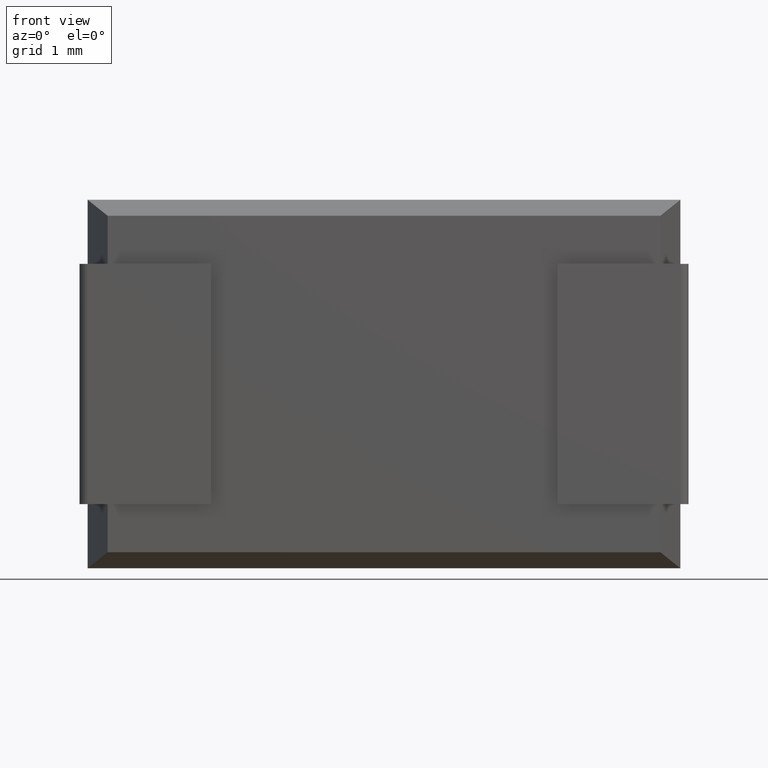
[diagram: clean part render]
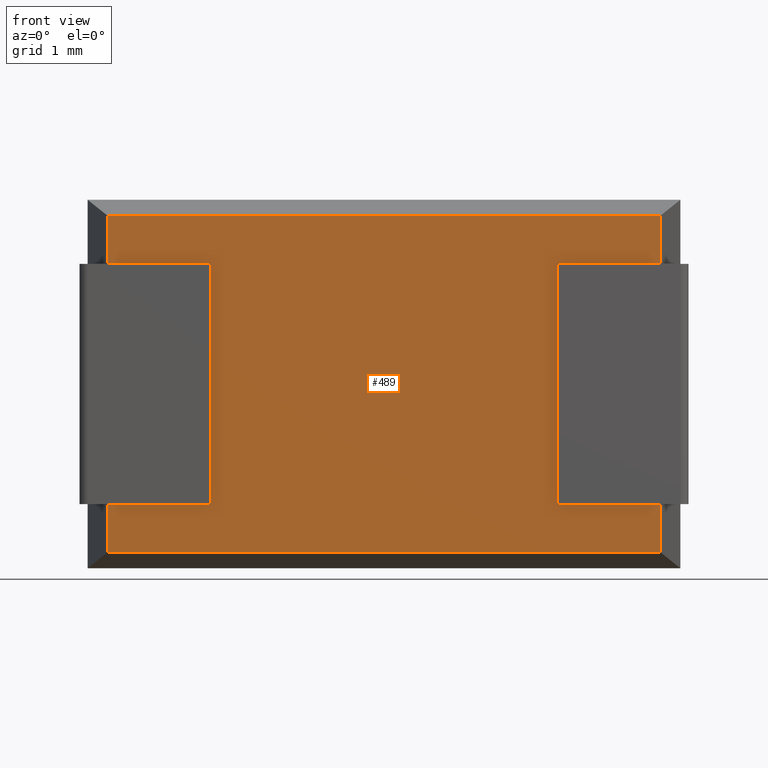
[diagram: same view with one face highlighted and labeled with its STEP entity id]
A machine part, front view. The second image highlights one B-rep face of the part: STEP entity #489.
In plain terms, the highlighted planar face has unit normal (0, -1, 0).
Its self-contained STEP definition (entity closure, byte-faithful):
#36 = CARTESIAN_POINT ( 'NONE',  ( 7.149999999999999467, 0.000000000000000000, -4.599999999999999645 ) ) ;
#69 = CARTESIAN_POINT ( 'NONE',  ( 1.537779882194698855, -3.192222914327899506E-17, -3.799999999999999822 ) ) ;
#90 = CARTESIAN_POINT ( 'NONE',  ( 5.862220117805300390, 0.000000000000000000, -3.799999999999999822 ) ) ;
#147 = EDGE_CURVE ( 'NONE', #2411, #1406, #1831, .T. ) ;
#248 = DIRECTION ( 'NONE',  ( -0.000000000000000000, -0.000000000000000000, 1.000000000000000000 ) ) ;
#272 = CARTESIAN_POINT ( 'NONE',  ( 5.862220117805300390, -3.192222914327899506E-17, -3.799999999999999822 ) ) ;
#309 = LINE ( 'NONE', #2138, #2780 ) ;
#317 = FACE_OUTER_BOUND ( 'NONE', #2244, .T. ) ;
#329 = EDGE_CURVE ( 'NONE', #2333, #1674, #2363, .T. ) ;
#331 = LINE ( 'NONE', #518, #2434 ) ;
#389 = LINE ( 'NONE', #2942, #661 ) ;
#393 = EDGE_CURVE ( 'NONE', #1406, #1966, #1181, .T. ) ;
#411 = VECTOR ( 'NONE', #943, 1000.000000000000000 ) ;
#441 = ORIENTED_EDGE ( 'NONE', *, *, #1202, .T. ) ;
#458 = EDGE_CURVE ( 'NONE', #2905, #834, #331, .T. ) ;
#489 = ADVANCED_FACE ( 'NONE', ( #317 ), #567, .T. ) ;
#518 = CARTESIAN_POINT ( 'NONE',  ( 7.399999999999999467, -1.084202172485504434E-16, -4.400000000000000355 ) ) ;
#567 = PLANE ( 'NONE',  #1761 ) ;
#661 = VECTOR ( 'NONE', #1088, 1000.000000000000000 ) ;
#678 = DIRECTION ( 'NONE',  ( -1.000000000000000000, 0.000000000000000000, 0.000000000000000000 ) ) ;
#679 = CARTESIAN_POINT ( 'NONE',  ( 5.862220117805300390, -3.192222914327899506E-17, -3.799999999999999822 ) ) ;
#745 = VECTOR ( 'NONE', #2366, 1000.000000000000000 ) ;
#823 = EDGE_CURVE ( 'NONE', #834, #2105, #2672, .T. ) ;
#829 = CARTESIAN_POINT ( 'NONE',  ( 0.2500000000000001665, -3.388131789017201356E-18, -0.7999999999999999334 ) ) ;
#834 = VERTEX_POINT ( 'NONE', #2889 ) ;
#897 = VECTOR ( 'NONE', #678, 1000.000000000000000 ) ;
#943 = DIRECTION ( 'NONE',  ( 0.000000000000000000, 0.000000000000000000, 1.000000000000000000 ) ) ;
#972 = DIRECTION ( 'NONE',  ( 0.000000000000000000, 0.000000000000000000, 1.000000000000000000 ) ) ;
#976 = CARTESIAN_POINT ( 'NONE',  ( 7.149999999999999467, 0.000000000000000000, -3.799999999999999822 ) ) ;
#1055 = DIRECTION ( 'NONE',  ( 1.000000000000000000, -1.017195236304267233E-16, 0.000000000000000000 ) ) ;
#1059 = EDGE_CURVE ( 'NONE', #1674, #1482, #309, .T. ) ;
#1088 = DIRECTION ( 'NONE',  ( -1.000000000000000000, -1.017195236304267233E-16, 0.000000000000000000 ) ) ;
#1135 = CARTESIAN_POINT ( 'NONE',  ( 7.149999999999999467, -3.673940397442037312E-17, -0.1999999999999996503 ) ) ;
#1145 = ORIENTED_EDGE ( 'NONE', *, *, #1731, .T. ) ;
#1181 = LINE ( 'NONE', #2334, #1701 ) ;
#1190 = ORIENTED_EDGE ( 'NONE', *, *, #393, .F. ) ;
#1202 = EDGE_CURVE ( 'NONE', #2905, #1284, #1838, .T. ) ;
#1204 = CARTESIAN_POINT ( 'NONE',  ( 1.537779882194698855, -3.192222914327899506E-17, -3.799999999999999822 ) ) ;
#1222 = LINE ( 'NONE', #36, #745 ) ;
#1264 = DIRECTION ( 'NONE',  ( 0.000000000000000000, -1.000000000000000000, 0.000000000000000000 ) ) ;
#1284 = VERTEX_POINT ( 'NONE', #976 ) ;
#1288 = EDGE_CURVE ( 'NONE', #1482, #1492, #1222, .T. ) ;
#1302 = CARTESIAN_POINT ( 'NONE',  ( 5.862220117805300390, -0.000000000000000000, -0.7999999999999999334 ) ) ;
#1406 = VERTEX_POINT ( 'NONE', #829 ) ;
#1439 = ORIENTED_EDGE ( 'NONE', *, *, #458, .F. ) ;
#1473 = DIRECTION ( 'NONE',  ( -1.000000000000000000, 0.000000000000000000, 0.000000000000000000 ) ) ;
#1482 = VERTEX_POINT ( 'NONE', #2469 ) ;
#1488 = CARTESIAN_POINT ( 'NONE',  ( 0.000000000000000000, 0.000000000000000000, 0.000000000000000000 ) ) ;
#1492 = VERTEX_POINT ( 'NONE', #1135 ) ;
#1530 = VECTOR ( 'NONE', #1055, 1000.000000000000000 ) ;
#1570 = ORIENTED_EDGE ( 'NONE', *, *, #1288, .T. ) ;
#1596 = LINE ( 'NONE', #2067, #897 ) ;
#1616 = VECTOR ( 'NONE', #972, 1000.000000000000000 ) ;
#1641 = CARTESIAN_POINT ( 'NONE',  ( 7.150000000000000355, 5.421010862427522170E-17, -4.400000000000000355 ) ) ;
#1674 = VERTEX_POINT ( 'NONE', #1302 ) ;
#1701 = VECTOR ( 'NONE', #248, 1000.000000000000000 ) ;
#1710 = CARTESIAN_POINT ( 'NONE',  ( 1.537779882194698855, -3.192222914327899506E-17, -0.7999999999999999334 ) ) ;
#1731 = EDGE_CURVE ( 'NONE', #2017, #2105, #389, .T. ) ;
#1761 = AXIS2_PLACEMENT_3D ( 'NONE', #1488, #1264, #1930 ) ;
#1787 = CARTESIAN_POINT ( 'NONE',  ( 0.2500000000000001110, -1.390555330637778128E-16, -3.799999999999999822 ) ) ;
#1831 = LINE ( 'NONE', #2094, #2773 ) ;
#1838 = LINE ( 'NONE', #1852, #2006 ) ;
#1852 = CARTESIAN_POINT ( 'NONE',  ( 7.149999999999999467, 0.000000000000000000, -4.599999999999999645 ) ) ;
#1884 = EDGE_CURVE ( 'NONE', #1492, #1966, #1596, .T. ) ;
#1930 = DIRECTION ( 'NONE',  ( 0.000000000000000000, -0.000000000000000000, -1.000000000000000000 ) ) ;
#1966 = VERTEX_POINT ( 'NONE', #2176 ) ;
#1977 = DIRECTION ( 'NONE',  ( -0.000000000000000000, -0.000000000000000000, 1.000000000000000000 ) ) ;
#1984 = LINE ( 'NONE', #679, #1530 ) ;
#1987 = ORIENTED_EDGE ( 'NONE', *, *, #1884, .T. ) ;
#1989 = CARTESIAN_POINT ( 'NONE',  ( 0.2500000000000001665, -3.388131789017201356E-18, -4.599999999999999645 ) ) ;
#2006 = VECTOR ( 'NONE', #2568, 1000.000000000000000 ) ;
#2017 = VERTEX_POINT ( 'NONE', #69 ) ;
#2026 = ORIENTED_EDGE ( 'NONE', *, *, #2756, .F. ) ;
#2067 = CARTESIAN_POINT ( 'NONE',  ( 7.399999999999999467, -3.673940397442037312E-17, -0.1999999999999996503 ) ) ;
#2094 = CARTESIAN_POINT ( 'NONE',  ( 1.537779882194698855, -3.192222914327899506E-17, -0.7999999999999999334 ) ) ;
#2104 = VECTOR ( 'NONE', #1977, 1000.000000000000000 ) ;
#2105 = VERTEX_POINT ( 'NONE', #1787 ) ;
#2138 = CARTESIAN_POINT ( 'NONE',  ( 5.862220117805300390, -3.192222914327899506E-17, -0.7999999999999999334 ) ) ;
#2154 = ORIENTED_EDGE ( 'NONE', *, *, #2236, .F. ) ;
#2176 = CARTESIAN_POINT ( 'NONE',  ( 0.2500000000000002220, -3.673940397442037312E-17, -0.1999999999999996503 ) ) ;
#2236 = EDGE_CURVE ( 'NONE', #2017, #2411, #2804, .T. ) ;
#2244 = EDGE_LOOP ( 'NONE', ( #441, #2026, #2572, #2681, #1570, #1987, #1190, #2267, #2154, #1145, #2576, #1439 ) ) ;
#2267 = ORIENTED_EDGE ( 'NONE', *, *, #147, .F. ) ;
#2333 = VERTEX_POINT ( 'NONE', #90 ) ;
#2334 = CARTESIAN_POINT ( 'NONE',  ( 0.2500000000000001665, -3.388131789017201356E-18, -4.599999999999999645 ) ) ;
#2363 = LINE ( 'NONE', #272, #1616 ) ;
#2366 = DIRECTION ( 'NONE',  ( -0.000000000000000000, -0.000000000000000000, 1.000000000000000000 ) ) ;
#2411 = VERTEX_POINT ( 'NONE', #1710 ) ;
#2434 = VECTOR ( 'NONE', #1473, 1000.000000000000000 ) ;
#2469 = CARTESIAN_POINT ( 'NONE',  ( 7.150000000000000355, -8.145729265048541440E-17, -0.7999999999999999334 ) ) ;
#2568 = DIRECTION ( 'NONE',  ( -0.000000000000000000, -0.000000000000000000, 1.000000000000000000 ) ) ;
#2572 = ORIENTED_EDGE ( 'NONE', *, *, #329, .T. ) ;
#2576 = ORIENTED_EDGE ( 'NONE', *, *, #823, .F. ) ;
#2612 = DIRECTION ( 'NONE',  ( 1.000000000000000000, -1.017195236304267233E-16, 0.000000000000000000 ) ) ;
#2672 = LINE ( 'NONE', #1989, #2104 ) ;
#2681 = ORIENTED_EDGE ( 'NONE', *, *, #1059, .T. ) ;
#2756 = EDGE_CURVE ( 'NONE', #2333, #1284, #1984, .T. ) ;
#2767 = DIRECTION ( 'NONE',  ( -1.000000000000000000, -1.017195236304267233E-16, 0.000000000000000000 ) ) ;
#2773 = VECTOR ( 'NONE', #2767, 1000.000000000000000 ) ;
#2780 = VECTOR ( 'NONE', #2612, 1000.000000000000000 ) ;
#2804 = LINE ( 'NONE', #1204, #411 ) ;
#2889 = CARTESIAN_POINT ( 'NONE',  ( 0.2500000000000006661, -2.371692252312040949E-16, -4.400000000000000355 ) ) ;
#2905 = VERTEX_POINT ( 'NONE', #1641 ) ;
#2942 = CARTESIAN_POINT ( 'NONE',  ( 1.537779882194698855, -3.192222914327899506E-17, -3.799999999999999822 ) ) ;